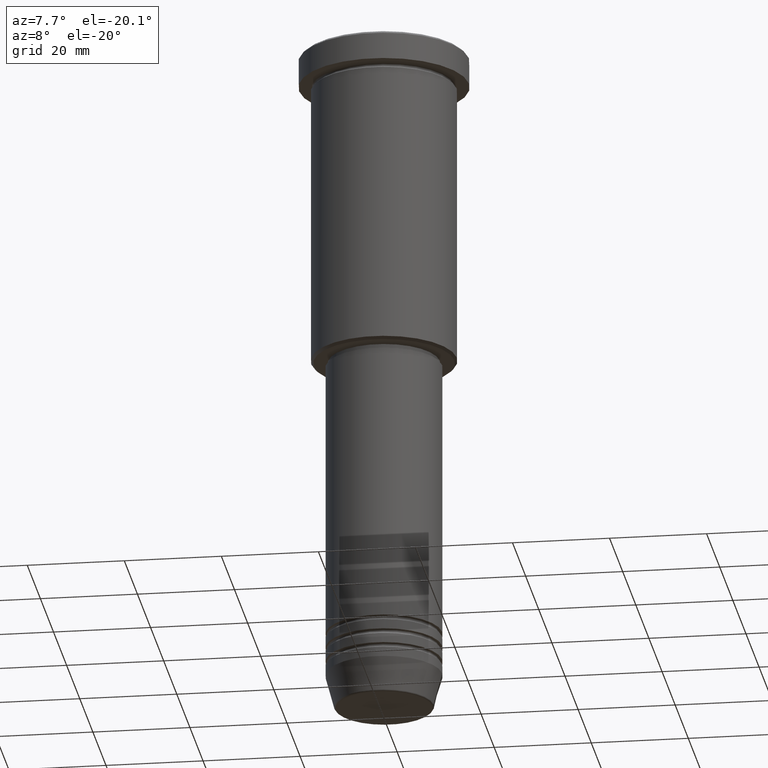
[diagram: clean part render]
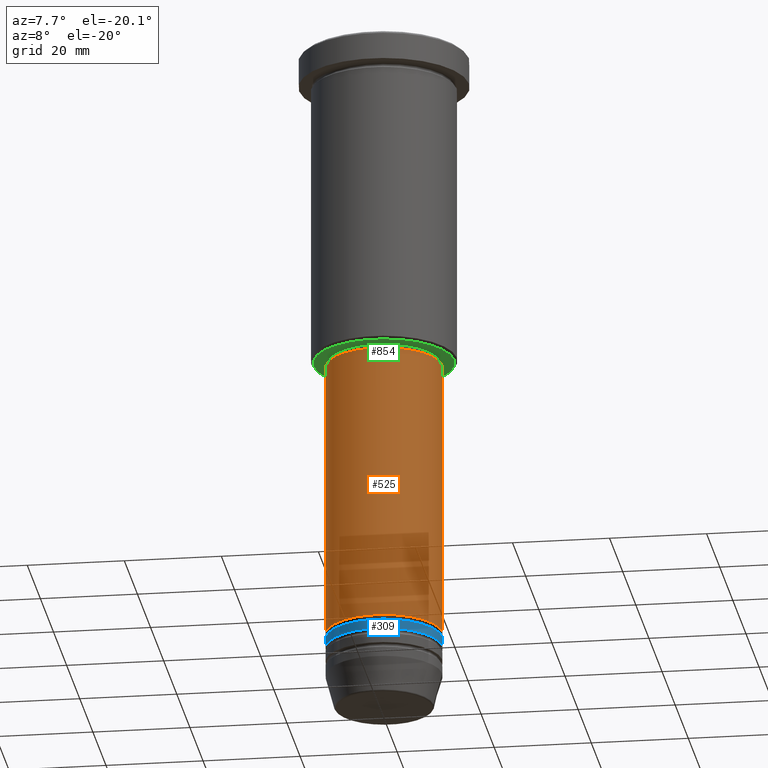
[diagram: same view with three faces highlighted in distinct colors, each labeled with its STEP entity id]
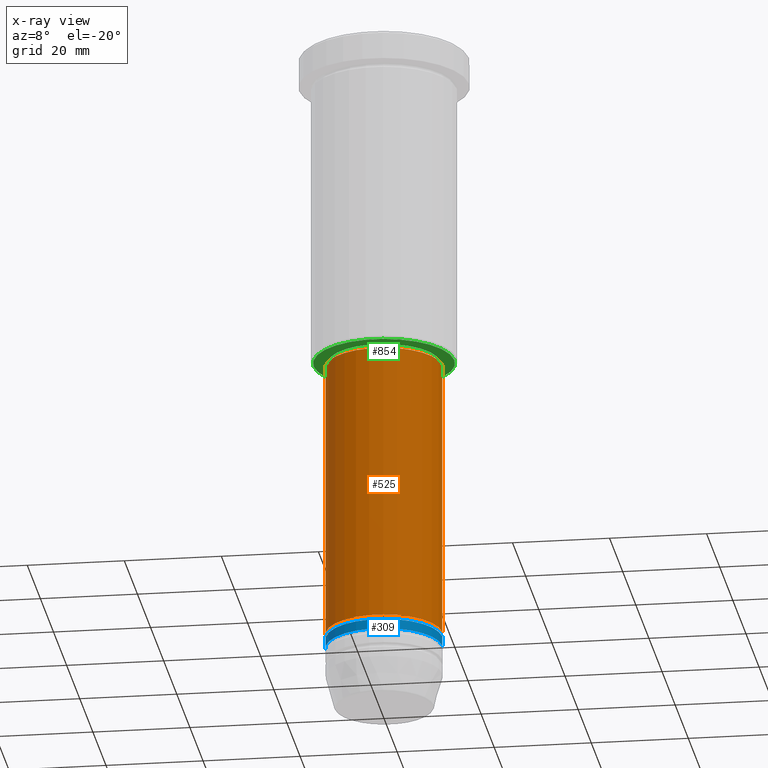
[diagram: x-ray of the same camera — body ghosted, the three highlighted faces saturated]
A machine part, auxiliary view with three faces highlighted in distinct colors.
The next image is the same camera in x-ray (body ghosted, the three faces saturated) — at least one of them is partly hidden behind the body in this view.
Their STEP definitions:

[orange] entity #525 — the highlighted cylindrical surface (partial cylindrical patch) has radius 12 mm, axis along (-0, -0, 1).
#51 = AXIS2_PLACEMENT_3D ( 'NONE', #570, #222, #1110 ) ;
#103 = ORIENTED_EDGE ( 'NONE', *, *, #725, .F. ) ;
#117 = VECTOR ( 'NONE', #447, 1000.000000000000000 ) ;
#128 = EDGE_CURVE ( 'NONE', #260, #167, #778, .T. ) ;
#167 = VERTEX_POINT ( 'NONE', #714 ) ;
#222 = DIRECTION ( 'NONE',  ( -0.000000000000000000, -0.000000000000000000, 1.000000000000000000 ) ) ;
#260 = VERTEX_POINT ( 'NONE', #897 ) ;
#295 = CIRCLE ( 'NONE', #51, 12.00000000000000000 ) ;
#303 = VERTEX_POINT ( 'NONE', #354 ) ;
#307 = CARTESIAN_POINT ( 'NONE',  ( -12.00000000000000000, 1.469576158976823947E-15, -124.9999999999999716 ) ) ;
#344 = AXIS2_PLACEMENT_3D ( 'NONE', #941, #1128, #937 ) ;
#350 = EDGE_CURVE ( 'NONE', #384, #303, #295, .T. ) ;
#354 = CARTESIAN_POINT ( 'NONE',  ( 12.00000000000000000, 0.000000000000000000, -124.9999999999999716 ) ) ;
#376 = LINE ( 'NONE', #476, #429 ) ;
#384 = VERTEX_POINT ( 'NONE', #307 ) ;
#424 = CARTESIAN_POINT ( 'NONE',  ( 0.000000000000000000, 0.000000000000000000, -67.00000000000000000 ) ) ;
#429 = VECTOR ( 'NONE', #819, 1000.000000000000000 ) ;
#447 = DIRECTION ( 'NONE',  ( -0.000000000000000000, -0.000000000000000000, 1.000000000000000000 ) ) ;
#476 = CARTESIAN_POINT ( 'NONE',  ( 12.00000000000000000, 0.000000000000000000, 0.000000000000000000 ) ) ;
#525 = ADVANCED_FACE ( 'NONE', ( #836 ), #853, .T. ) ;
#570 = CARTESIAN_POINT ( 'NONE',  ( 0.000000000000000000, 0.000000000000000000, -124.9999999999999716 ) ) ;
#615 = LINE ( 'NONE', #710, #117 ) ;
#647 = ORIENTED_EDGE ( 'NONE', *, *, #128, .F. ) ;
#680 = EDGE_CURVE ( 'NONE', #303, #167, #376, .T. ) ;
#710 = CARTESIAN_POINT ( 'NONE',  ( -12.00000000000000000, 1.469576158976823947E-15, 0.000000000000000000 ) ) ;
#714 = CARTESIAN_POINT ( 'NONE',  ( 12.00000000000000000, 0.000000000000000000, -67.00000000000000000 ) ) ;
#725 = EDGE_CURVE ( 'NONE', #384, #260, #615, .T. ) ;
#777 = DIRECTION ( 'NONE',  ( -0.000000000000000000, -0.000000000000000000, 1.000000000000000000 ) ) ;
#778 = CIRCLE ( 'NONE', #1092, 12.00000000000000000 ) ;
#819 = DIRECTION ( 'NONE',  ( -0.000000000000000000, -0.000000000000000000, 1.000000000000000000 ) ) ;
#836 = FACE_OUTER_BOUND ( 'NONE', #1052, .T. ) ;
#853 = CYLINDRICAL_SURFACE ( 'NONE', #344, 12.00000000000000000 ) ;
#897 = CARTESIAN_POINT ( 'NONE',  ( -12.00000000000000000, 1.469576158976823947E-15, -67.00000000000000000 ) ) ;
#908 = ORIENTED_EDGE ( 'NONE', *, *, #350, .T. ) ;
#937 = DIRECTION ( 'NONE',  ( 1.000000000000000000, 0.000000000000000000, 0.000000000000000000 ) ) ;
#941 = CARTESIAN_POINT ( 'NONE',  ( 0.000000000000000000, 0.000000000000000000, 0.000000000000000000 ) ) ;
#1052 = EDGE_LOOP ( 'NONE', ( #103, #908, #1175, #647 ) ) ;
#1065 = DIRECTION ( 'NONE',  ( 1.000000000000000000, 0.000000000000000000, 0.000000000000000000 ) ) ;
#1092 = AXIS2_PLACEMENT_3D ( 'NONE', #424, #777, #1065 ) ;
#1110 = DIRECTION ( 'NONE',  ( 1.000000000000000000, 0.000000000000000000, 0.000000000000000000 ) ) ;
#1128 = DIRECTION ( 'NONE',  ( -0.000000000000000000, -0.000000000000000000, 1.000000000000000000 ) ) ;
#1175 = ORIENTED_EDGE ( 'NONE', *, *, #680, .T. ) ;

[blue] entity #309 — the highlighted cylindrical surface (partial cylindrical patch) has radius 12 mm, axis along (-0, -0, 1).
#8 = CARTESIAN_POINT ( 'NONE',  ( 0.000000000000000000, 0.000000000000000000, -125.9999999999999716 ) ) ;
#28 = LINE ( 'NONE', #127, #636 ) ;
#32 = AXIS2_PLACEMENT_3D ( 'NONE', #135, #485, #119 ) ;
#34 = AXIS2_PLACEMENT_3D ( 'NONE', #170, #697, #927 ) ;
#119 = DIRECTION ( 'NONE',  ( 1.000000000000000000, 0.000000000000000000, 0.000000000000000000 ) ) ;
#127 = CARTESIAN_POINT ( 'NONE',  ( 12.00000000000000000, 0.000000000000000000, 0.000000000000000000 ) ) ;
#135 = CARTESIAN_POINT ( 'NONE',  ( 0.000000000000000000, 0.000000000000000000, 0.000000000000000000 ) ) ;
#170 = CARTESIAN_POINT ( 'NONE',  ( 0.000000000000000000, 0.000000000000000000, -127.9999999999999716 ) ) ;
#226 = CARTESIAN_POINT ( 'NONE',  ( -12.00000000000000000, 1.469576158976823947E-15, -125.9999999999999716 ) ) ;
#240 = CARTESIAN_POINT ( 'NONE',  ( 12.00000000000000000, 0.000000000000000000, -125.9999999999999716 ) ) ;
#273 = FACE_OUTER_BOUND ( 'NONE', #764, .T. ) ;
#309 = ADVANCED_FACE ( 'NONE', ( #273 ), #901, .T. ) ;
#365 = ORIENTED_EDGE ( 'NONE', *, *, #839, .T. ) ;
#370 = CARTESIAN_POINT ( 'NONE',  ( -12.00000000000000000, 1.469576158976823947E-15, -127.9999999999999716 ) ) ;
#374 = VERTEX_POINT ( 'NONE', #226 ) ;
#446 = VERTEX_POINT ( 'NONE', #845 ) ;
#461 = VERTEX_POINT ( 'NONE', #240 ) ;
#482 = ORIENTED_EDGE ( 'NONE', *, *, #1027, .F. ) ;
#485 = DIRECTION ( 'NONE',  ( -0.000000000000000000, -0.000000000000000000, 1.000000000000000000 ) ) ;
#536 = DIRECTION ( 'NONE',  ( -0.000000000000000000, -0.000000000000000000, 1.000000000000000000 ) ) ;
#552 = CARTESIAN_POINT ( 'NONE',  ( -12.00000000000000000, 1.469576158976823947E-15, 0.000000000000000000 ) ) ;
#568 = VECTOR ( 'NONE', #536, 1000.000000000000000 ) ;
#636 = VECTOR ( 'NONE', #1129, 1000.000000000000000 ) ;
#688 = ORIENTED_EDGE ( 'NONE', *, *, #789, .F. ) ;
#697 = DIRECTION ( 'NONE',  ( -0.000000000000000000, -0.000000000000000000, 1.000000000000000000 ) ) ;
#729 = CIRCLE ( 'NONE', #34, 12.00000000000000000 ) ;
#764 = EDGE_LOOP ( 'NONE', ( #482, #365, #864, #688 ) ) ;
#789 = EDGE_CURVE ( 'NONE', #374, #461, #955, .T. ) ;
#839 = EDGE_CURVE ( 'NONE', #991, #446, #729, .T. ) ;
#845 = CARTESIAN_POINT ( 'NONE',  ( 12.00000000000000000, 0.000000000000000000, -127.9999999999999716 ) ) ;
#864 = ORIENTED_EDGE ( 'NONE', *, *, #1079, .T. ) ;
#895 = DIRECTION ( 'NONE',  ( -0.000000000000000000, -0.000000000000000000, 1.000000000000000000 ) ) ;
#901 = CYLINDRICAL_SURFACE ( 'NONE', #32, 12.00000000000000000 ) ;
#927 = DIRECTION ( 'NONE',  ( 1.000000000000000000, 0.000000000000000000, 0.000000000000000000 ) ) ;
#955 = CIRCLE ( 'NONE', #1095, 12.00000000000000000 ) ;
#991 = VERTEX_POINT ( 'NONE', #370 ) ;
#1004 = LINE ( 'NONE', #552, #568 ) ;
#1027 = EDGE_CURVE ( 'NONE', #991, #374, #1004, .T. ) ;
#1079 = EDGE_CURVE ( 'NONE', #446, #461, #28, .T. ) ;
#1095 = AXIS2_PLACEMENT_3D ( 'NONE', #8, #895, #1105 ) ;
#1105 = DIRECTION ( 'NONE',  ( 1.000000000000000000, 0.000000000000000000, 0.000000000000000000 ) ) ;
#1129 = DIRECTION ( 'NONE',  ( -0.000000000000000000, -0.000000000000000000, 1.000000000000000000 ) ) ;

[green] entity #854 — the highlighted planar face has unit normal (0, 0, -1).
#9 = DIRECTION ( 'NONE',  ( 1.000000000000000000, 0.000000000000000000, 0.000000000000000000 ) ) ;
#24 = ORIENTED_EDGE ( 'NONE', *, *, #988, .T. ) ;
#140 = CARTESIAN_POINT ( 'NONE',  ( 0.000000000000000000, 0.000000000000000000, -66.00000000000000000 ) ) ;
#188 = VERTEX_POINT ( 'NONE', #887 ) ;
#196 = AXIS2_PLACEMENT_3D ( 'NONE', #813, #733, #203 ) ;
#197 = AXIS2_PLACEMENT_3D ( 'NONE', #980, #902, #199 ) ;
#199 = DIRECTION ( 'NONE',  ( -1.000000000000000000, 0.000000000000000000, 0.000000000000000000 ) ) ;
#203 = DIRECTION ( 'NONE',  ( 1.000000000000000000, 0.000000000000000000, 0.000000000000000000 ) ) ;
#212 = ORIENTED_EDGE ( 'NONE', *, *, #1143, .T. ) ;
#243 = VERTEX_POINT ( 'NONE', #378 ) ;
#293 = VERTEX_POINT ( 'NONE', #978 ) ;
#378 = CARTESIAN_POINT ( 'NONE',  ( -11.50000000000000000, 1.408343819019456176E-15, -66.00000000000000000 ) ) ;
#381 = EDGE_LOOP ( 'NONE', ( #24, #212 ) ) ;
#425 = FACE_OUTER_BOUND ( 'NONE', #381, .T. ) ;
#487 = ORIENTED_EDGE ( 'NONE', *, *, #587, .T. ) ;
#491 = DIRECTION ( 'NONE',  ( 0.000000000000000000, 0.000000000000000000, -1.000000000000000000 ) ) ;
#532 = AXIS2_PLACEMENT_3D ( 'NONE', #140, #1028, #1020 ) ;
#534 = PLANE ( 'NONE',  #712 ) ;
#555 = EDGE_CURVE ( 'NONE', #188, #243, #1174, .T. ) ;
#576 = ORIENTED_EDGE ( 'NONE', *, *, #555, .T. ) ;
#587 = EDGE_CURVE ( 'NONE', #243, #188, #994, .T. ) ;
#617 = AXIS2_PLACEMENT_3D ( 'NONE', #650, #917, #9 ) ;
#618 = CIRCLE ( 'NONE', #532, 14.49999999999999645 ) ;
#650 = CARTESIAN_POINT ( 'NONE',  ( 0.000000000000000000, 0.000000000000000000, -66.00000000000000000 ) ) ;
#667 = CARTESIAN_POINT ( 'NONE',  ( 14.49999999999999645, 0.000000000000000000, -66.00000000000000000 ) ) ;
#712 = AXIS2_PLACEMENT_3D ( 'NONE', #863, #491, #1164 ) ;
#733 = DIRECTION ( 'NONE',  ( -0.000000000000000000, -0.000000000000000000, 1.000000000000000000 ) ) ;
#747 = CIRCLE ( 'NONE', #197, 14.49999999999999645 ) ;
#813 = CARTESIAN_POINT ( 'NONE',  ( 0.000000000000000000, 0.000000000000000000, -66.00000000000000000 ) ) ;
#854 = ADVANCED_FACE ( 'NONE', ( #425, #871 ), #534, .T. ) ;
#863 = CARTESIAN_POINT ( 'NONE',  ( 0.000000000000000000, 15.00000000000000000, -66.00000000000000000 ) ) ;
#871 = FACE_BOUND ( 'NONE', #916, .T. ) ;
#887 = CARTESIAN_POINT ( 'NONE',  ( 11.50000000000000000, 0.000000000000000000, -66.00000000000000000 ) ) ;
#902 = DIRECTION ( 'NONE',  ( 0.000000000000000000, 0.000000000000000000, -1.000000000000000000 ) ) ;
#916 = EDGE_LOOP ( 'NONE', ( #576, #487 ) ) ;
#917 = DIRECTION ( 'NONE',  ( -0.000000000000000000, -0.000000000000000000, 1.000000000000000000 ) ) ;
#978 = CARTESIAN_POINT ( 'NONE',  ( -14.49999999999999645, 1.806354028742345802E-15, -66.00000000000000000 ) ) ;
#980 = CARTESIAN_POINT ( 'NONE',  ( 0.000000000000000000, 0.000000000000000000, -66.00000000000000000 ) ) ;
#988 = EDGE_CURVE ( 'NONE', #1111, #293, #747, .T. ) ;
#994 = CIRCLE ( 'NONE', #617, 11.50000000000000000 ) ;
#1020 = DIRECTION ( 'NONE',  ( -1.000000000000000000, 0.000000000000000000, 0.000000000000000000 ) ) ;
#1028 = DIRECTION ( 'NONE',  ( 0.000000000000000000, 0.000000000000000000, -1.000000000000000000 ) ) ;
#1111 = VERTEX_POINT ( 'NONE', #667 ) ;
#1143 = EDGE_CURVE ( 'NONE', #293, #1111, #618, .T. ) ;
#1164 = DIRECTION ( 'NONE',  ( -1.000000000000000000, 0.000000000000000000, -0.000000000000000000 ) ) ;
#1174 = CIRCLE ( 'NONE', #196, 11.50000000000000000 ) ;